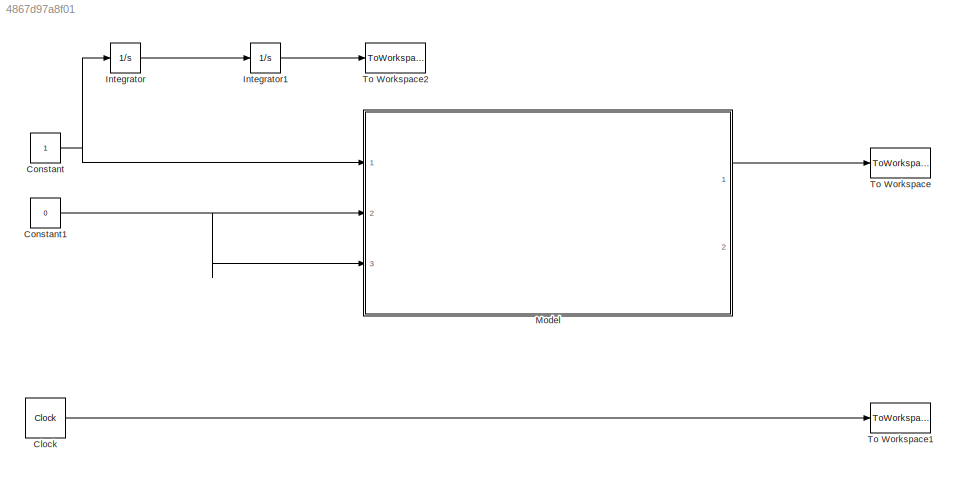
MODEL slx_4867d97a8f01
KIND model
BLOCK [Clock] Clock
BLOCK [Constant] Constant
BLOCK [Constant] Constant1
  Value = 0
BLOCK [Integrator] Integrator
  Ports = [1, 1]
BLOCK [Integrator] Integrator1
  Ports = [1, 1]
BLOCK [ModelReference] Model
  CopyOfModelName = inverted_pendulum
  DefaultDataLogging = on
  ModelNameDialog = inverted_pendulum
  ModelReferenceVersion = 1.12
  Ports = [3, 2]
BLOCK [ToWorkspace] To Workspace
  MaxDataPoints = inf
  Ports = [1]
  SampleTime = -1
  VariableName = theta
BLOCK [ToWorkspace] To Workspace1
  MaxDataPoints = inf
  Ports = [1]
  SampleTime = -1
  VariableName = t
BLOCK [ToWorkspace] To Workspace2
  MaxDataPoints = inf
  Ports = [1]
  SampleTime = -1
  VariableName = location
LINE Clock:1 -> To Workspace1:1
NET Constant1:1 -> Model:2, Model:3
NET Constant:1 -> Integrator:1, Model:1
LINE Integrator1:1 -> To Workspace2:1
LINE Integrator:1 -> Integrator1:1
LINE Model:1 -> To Workspace:1
note: NET lines group one-source signal fan-out (src -> all destinations, sorted); 1:1 wires keep LINE
